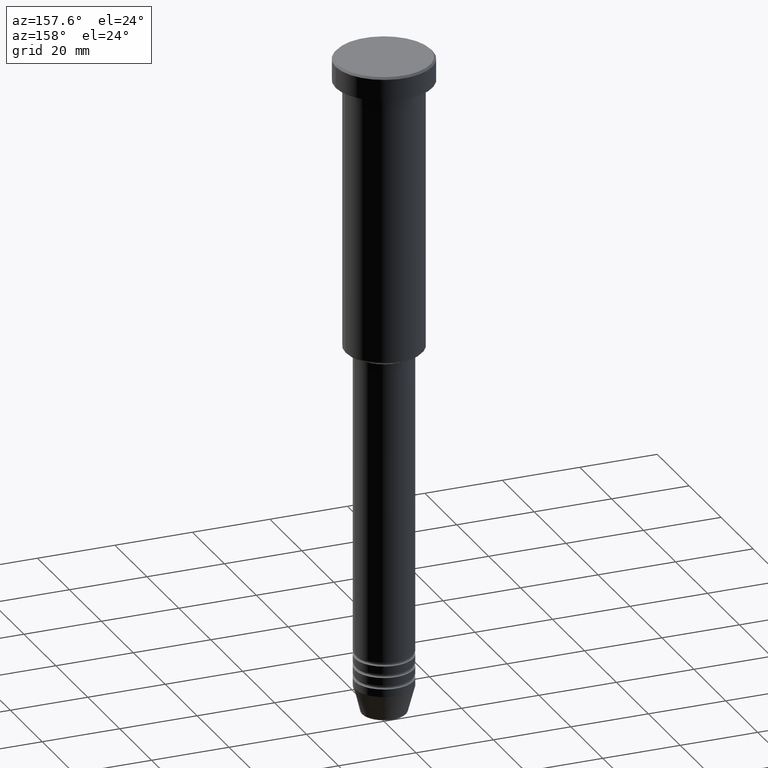
[diagram: clean part render]
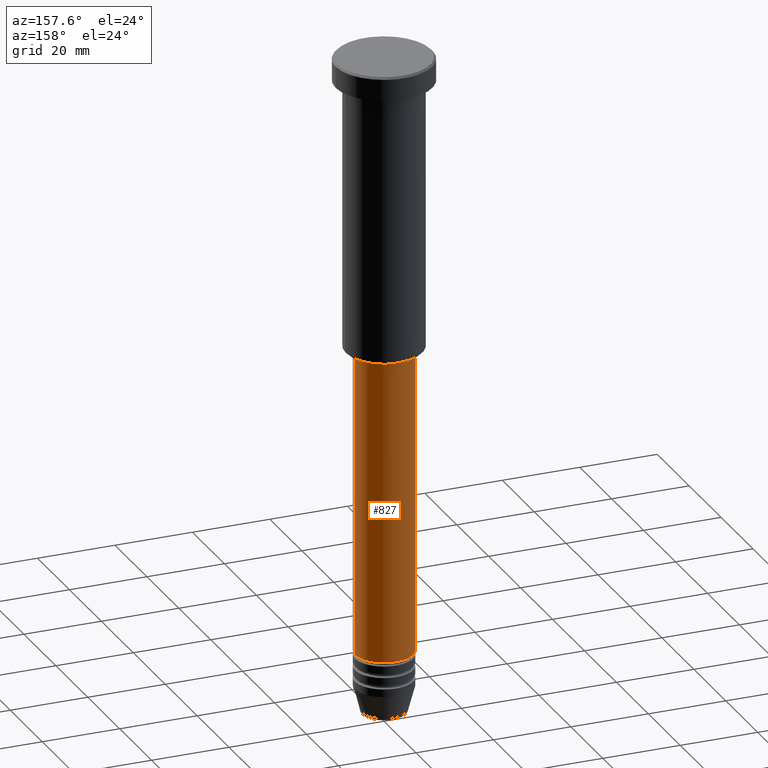
[diagram: same view with one face highlighted and labeled with its STEP entity id]
A machine part, auxiliary view. The second image highlights one B-rep face of the part: STEP entity #827.
In plain terms, the highlighted cylindrical surface (edge-blend (fillet) strip) has radius 7.5 mm, axis along (-0, -0, 1).
Its self-contained STEP definition (entity closure, byte-faithful):
#177 = VERTEX_POINT ( 'NONE', #618 ) ;
#198 = CYLINDRICAL_SURFACE ( 'NONE', #642, 7.500000000000000000 ) ;
#203 = CARTESIAN_POINT ( 'NONE',  ( -7.500000000000000000, 9.184850993605147944E-16, -154.9999999999999716 ) ) ;
#232 = VECTOR ( 'NONE', #660, 1000.000000000000000 ) ;
#299 = CARTESIAN_POINT ( 'NONE',  ( -7.500000000000000000, 9.184850993605147944E-16, 0.000000000000000000 ) ) ;
#316 = EDGE_CURVE ( 'NONE', #836, #770, #940, .T. ) ;
#333 = EDGE_LOOP ( 'NONE', ( #374, #1086, #862, #926 ) ) ;
#366 = CIRCLE ( 'NONE', #1039, 7.500000000000000000 ) ;
#374 = ORIENTED_EDGE ( 'NONE', *, *, #650, .T. ) ;
#432 = EDGE_CURVE ( 'NONE', #692, #770, #366, .T. ) ;
#438 = DIRECTION ( 'NONE',  ( 1.000000000000000000, 0.000000000000000000, 0.000000000000000000 ) ) ;
#459 = AXIS2_PLACEMENT_3D ( 'NONE', #1159, #997, #438 ) ;
#466 = CARTESIAN_POINT ( 'NONE',  ( -7.500000000000000000, 9.184850993605147944E-16, -77.00000000000001421 ) ) ;
#472 = DIRECTION ( 'NONE',  ( 1.000000000000000000, 0.000000000000000000, 0.000000000000000000 ) ) ;
#513 = VECTOR ( 'NONE', #951, 1000.000000000000000 ) ;
#579 = LINE ( 'NONE', #955, #513 ) ;
#618 = CARTESIAN_POINT ( 'NONE',  ( 7.500000000000000000, 0.000000000000000000, -154.9999999999999716 ) ) ;
#642 = AXIS2_PLACEMENT_3D ( 'NONE', #1180, #1002, #828 ) ;
#650 = EDGE_CURVE ( 'NONE', #177, #836, #722, .T. ) ;
#660 = DIRECTION ( 'NONE',  ( -0.000000000000000000, -0.000000000000000000, 1.000000000000000000 ) ) ;
#692 = VERTEX_POINT ( 'NONE', #876 ) ;
#722 = CIRCLE ( 'NONE', #459, 7.500000000000000000 ) ;
#736 = CARTESIAN_POINT ( 'NONE',  ( 0.000000000000000000, 0.000000000000000000, -77.00000000000001421 ) ) ;
#770 = VERTEX_POINT ( 'NONE', #466 ) ;
#827 = ADVANCED_FACE ( 'NONE', ( #1016 ), #198, .T. ) ;
#828 = DIRECTION ( 'NONE',  ( 1.000000000000000000, 0.000000000000000000, 0.000000000000000000 ) ) ;
#836 = VERTEX_POINT ( 'NONE', #203 ) ;
#862 = ORIENTED_EDGE ( 'NONE', *, *, #432, .F. ) ;
#876 = CARTESIAN_POINT ( 'NONE',  ( 7.500000000000000000, 0.000000000000000000, -77.00000000000001421 ) ) ;
#926 = ORIENTED_EDGE ( 'NONE', *, *, #1004, .F. ) ;
#940 = LINE ( 'NONE', #299, #232 ) ;
#951 = DIRECTION ( 'NONE',  ( -0.000000000000000000, -0.000000000000000000, 1.000000000000000000 ) ) ;
#955 = CARTESIAN_POINT ( 'NONE',  ( 7.500000000000000000, 0.000000000000000000, 0.000000000000000000 ) ) ;
#997 = DIRECTION ( 'NONE',  ( -0.000000000000000000, -0.000000000000000000, 1.000000000000000000 ) ) ;
#1002 = DIRECTION ( 'NONE',  ( -0.000000000000000000, -0.000000000000000000, 1.000000000000000000 ) ) ;
#1004 = EDGE_CURVE ( 'NONE', #177, #692, #579, .T. ) ;
#1016 = FACE_OUTER_BOUND ( 'NONE', #333, .T. ) ;
#1039 = AXIS2_PLACEMENT_3D ( 'NONE', #736, #1104, #472 ) ;
#1086 = ORIENTED_EDGE ( 'NONE', *, *, #316, .T. ) ;
#1104 = DIRECTION ( 'NONE',  ( -0.000000000000000000, -0.000000000000000000, 1.000000000000000000 ) ) ;
#1159 = CARTESIAN_POINT ( 'NONE',  ( 0.000000000000000000, 0.000000000000000000, -154.9999999999999716 ) ) ;
#1180 = CARTESIAN_POINT ( 'NONE',  ( 0.000000000000000000, 0.000000000000000000, 0.000000000000000000 ) ) ;